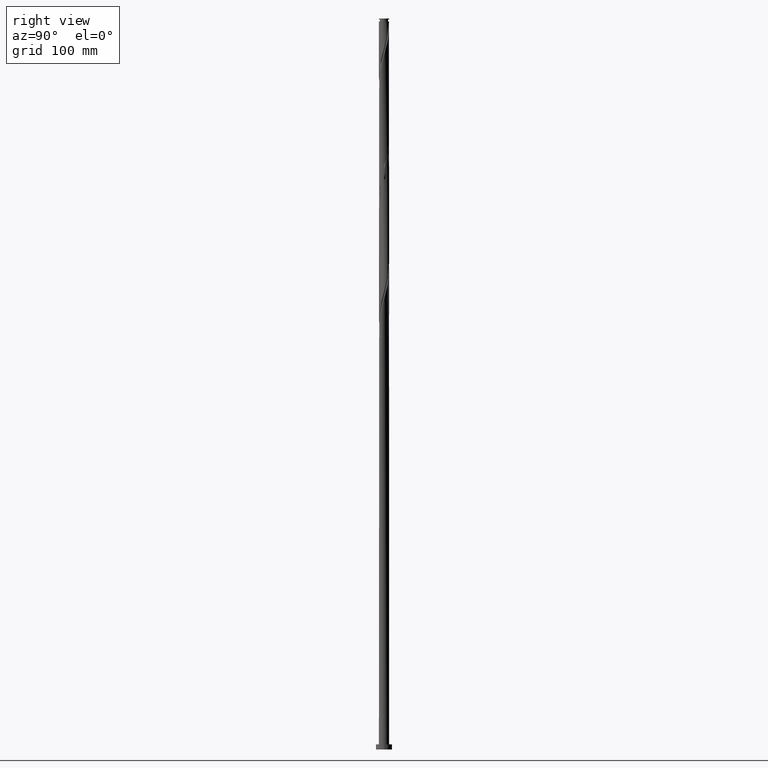
[diagram: clean part render]
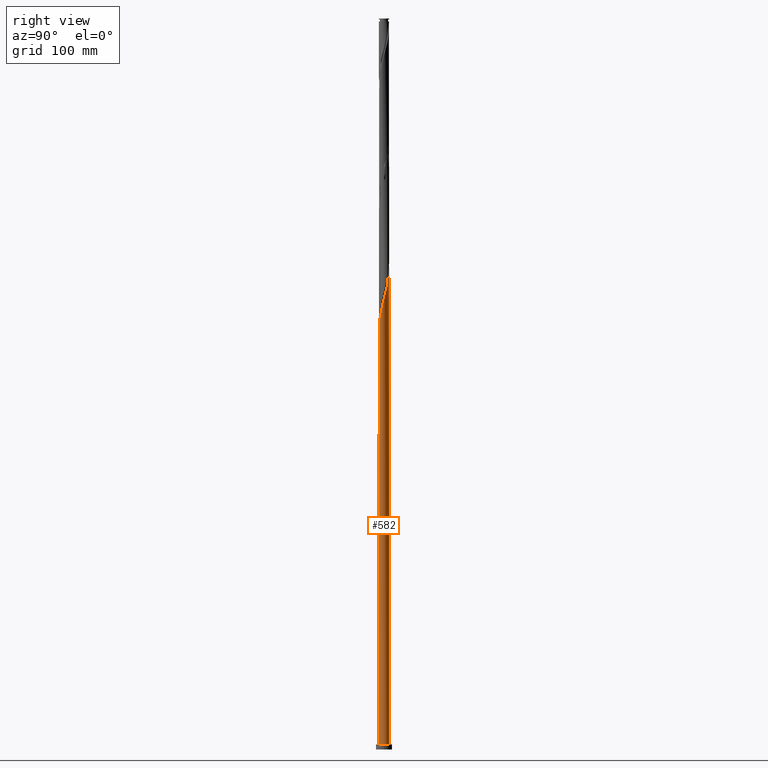
[diagram: same view with one face highlighted and labeled with its STEP entity id]
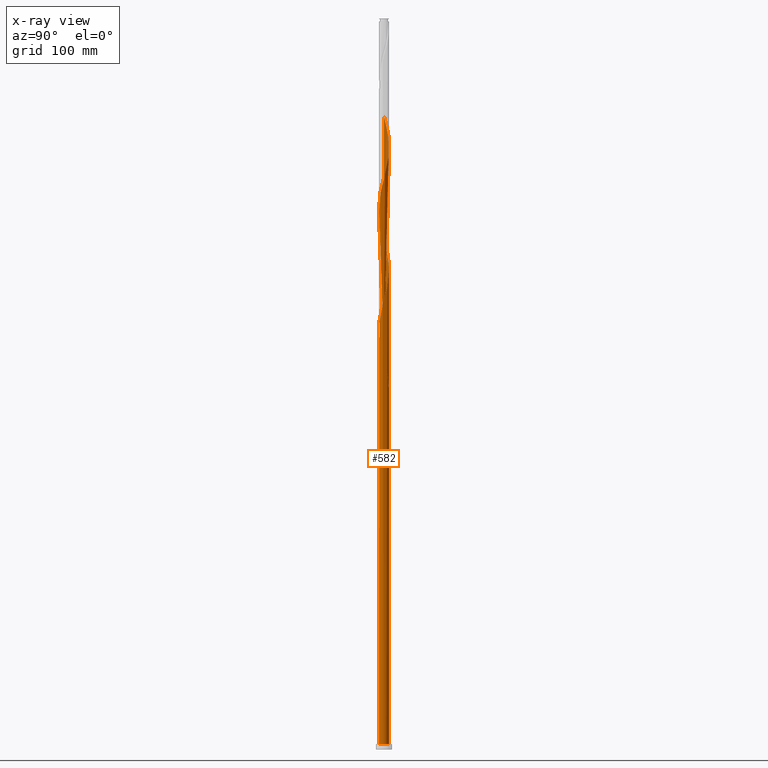
[diagram: x-ray of the same camera — body ghosted, the highlighted face saturated]
A machine part, right view. The second image highlights one B-rep face of the part: STEP entity #582.
The next image is the same camera in x-ray: the body ghosted, the highlighted face saturated — about 0% of this face is hidden behind the body in this view.
In plain terms, the highlighted cylindrical surface (bore or boss wall) has radius 7 mm, axis along (-0, -0, -1).
Its self-contained STEP definition (entity closure, byte-faithful):
#8 = CARTESIAN_POINT ( 'NONE',  ( 6.744705537261459938, -1.873218411086838620, 775.0884555702351690 ) ) ;
#13 = ORIENTED_EDGE ( 'NONE', *, *, #803, .T. ) ;
#18 = CARTESIAN_POINT ( 'NONE',  ( -3.865765209376792022, -5.835739828502648940, 725.0884555702352827 ) ) ;
#30 = CARTESIAN_POINT ( 'NONE',  ( -0.2477045896115740997, -7.017274856415686379, 739.6717889035687676 ) ) ;
#47 = CARTESIAN_POINT ( 'NONE',  ( -6.368631099858728994, 2.905260386593999211, 520.9217889035686540 ) ) ;
#48 = CARTESIAN_POINT ( 'NONE',  ( -5.159153274858739202, 4.731082062965558777, 845.9217889035684266 ) ) ;
#68 = CARTESIAN_POINT ( 'NONE',  ( -6.744705537261459938, 1.873218411086837509, 525.0884555702352827 ) ) ;
#70 = CARTESIAN_POINT ( 'NONE',  ( -6.139982148663833961, 3.406482524289229818, 852.1717889035687676 ) ) ;
#82 = CARTESIAN_POINT ( 'NONE',  ( -3.924253449303488406, 5.822691717739152395, 839.6717889035689950 ) ) ;
#114 = CARTESIAN_POINT ( 'NONE',  ( -1.932876120766163330, 6.750369906602927017, 664.6717889035687676 ) ) ;
#116 = ORIENTED_EDGE ( 'NONE', *, *, #2266, .T. ) ;
#129 = CARTESIAN_POINT ( 'NONE',  ( 3.924253449303488406, -5.822691717739153283, 589.6717889035689950 ) ) ;
#138 = CARTESIAN_POINT ( 'NONE',  ( 6.969630093397093162, 0.8530887031323927117, 618.8384555702353964 ) ) ;
#145 = CARTESIAN_POINT ( 'NONE',  ( -6.999999999999998224, -8.478051187993811111E-15, 542.9017337756833967 ) ) ;
#148 = CARTESIAN_POINT ( 'NONE',  ( 4.325047894464358222, 5.531497508341468361, 639.6717889035689950 ) ) ;
#154 = CARTESIAN_POINT ( 'NONE',  ( -3.406482524289221381, 6.139982148663823303, 514.6717889035686540 ) ) ;
#162 = CARTESIAN_POINT ( 'NONE',  ( 6.139982148663832184, -3.406482524289232927, 602.1717889035686540 ) ) ;
#168 = CARTESIAN_POINT ( 'NONE',  ( -5.822691717739143513, 3.924253449303482189, 527.1717889035687676 ) ) ;
#177 = CARTESIAN_POINT ( 'NONE',  ( -4.731082062965558777, -5.159153274858739202, 720.9217889035686540 ) ) ;
#190 = CARTESIAN_POINT ( 'NONE',  ( 1.932876120766162442, -6.750369906602927017, 748.0051222369021389 ) ) ;
#201 = CARTESIAN_POINT ( 'NONE',  ( 6.860000000000005649, 1.392982411949278410, 787.5884555702355101 ) ) ;
#214 = CARTESIAN_POINT ( 'NONE',  ( -5.159153274858739202, 4.731082062965558777, 679.2551222369020252 ) ) ;
#233 = CARTESIAN_POINT ( 'NONE',  ( -6.368631099858728994, 2.905260386593999211, 854.2551222369019115 ) ) ;
#242 = CARTESIAN_POINT ( 'NONE',  ( -2.448972917112381964, 6.557631558058916177, 833.4217889035683129 ) ) ;
#260 = CARTESIAN_POINT ( 'NONE',  ( -4.786809041376016260, 5.137116231466766436, 843.8384555702355101 ) ) ;
#289 = CARTESIAN_POINT ( 'NONE',  ( -0.7950515814432398409, -6.954702939942491113, 570.9217889035686540 ) ) ;
#297 =( BOUNDED_CURVE ( )  B_SPLINE_CURVE ( 2, ( #791, #1151, #438, #1161, #328, #876, #2306, #1912, #504, #2120, #656, #2085, #669, #1033, #1969, #1204, #478, #1265, #1250, #1587, #289, #1753, #1060, #839, #1046, #1767, #679, #341, #1419, #129, #1577, #1609, #853, #1565, #1792, #162, #1432, #518, #1954, #863, #315, #2268, #1233, #138, #702, #691, #2107, #1939, #1598, #2281, #492, #1781, #2294, #148, #1405, #1444, #530, #2134, #2096, #1072, #2253, #1391, #1219, #1019, #1741, #114, #1926, #304, #928, #2329, #2004, #1659, #214, #377, #577, #553, #1467, #1493, #2157, #939, #1620, #1120, #566, #1634, #725, #1837, #394, #1292, #1993, #2191, #1504, #1671, #177, #713, #18, #2027, #365, #1098, #751, #1814, #540, #30, #2181, #406, #1455, #190, #1109, #762, #918, #1482, #1315, #2144, #1304, #2170, #1644, #1826, #2017, #588, #8, #905, #1327, #1130, #1846, #892, #201, #2319, #1278, #1980, #352, #1085, #1804, #739, #416, #1885, #1139, #1678, #988, #1713, #1855, #640, #2071, #1377, #2200, #770, #2238, #2229, #242, #1516, #949, #82, #1335, #260, #48, #1687, #1366, #70, #233, #1553, #781, #788, #616, #459, #1185 ),
 .UNSPECIFIED., .F., .T. ) 
 B_SPLINE_CURVE_WITH_KNOTS ( ( 3, 2, 2, 2, 2, 2, 2, 2, 2, 2, 2, 2, 2, 2, 2, 2, 2, 2, 2, 2, 2, 2, 2, 2, 2, 2, 2, 2, 2, 2, 2, 2, 2, 2, 2, 2, 2, 2, 2, 2, 2, 2, 2, 2, 2, 2, 2, 2, 2, 2, 2, 2, 2, 2, 2, 2, 2, 2, 2, 2, 2, 2, 2, 2, 2, 2, 2, 2, 2, 2, 2, 2, 2, 2, 2, 2, 2, 2, 2, 2, 2, 3 ),
 ( 0.05452835374107316974, 0.05625000000000002220, 0.06250000000000000000, 0.06874999999999997780, 0.07499999999999995559, 0.08125000000000004441, 0.08750000000000002220, 0.09375000000000000000, 0.09999999999999997780, 0.1062499999999999556, 0.1125000000000000444, 0.1187500000000000222, 0.1250000000000000000, 0.1312499999999999778, 0.1374999999999999556, 0.1437500000000000444, 0.1500000000000000222, 0.1562500000000000000, 0.1624999999999999778, 0.1687499999999999556, 0.1750000000000000444, 0.1812500000000000222, 0.1875000000000000000, 0.1937499999999999778, 0.1999999999999999556, 0.2062500000000000444, 0.2125000000000000222, 0.2187500000000000000, 0.2249999999999999778, 0.2312499999999999556, 0.2375000000000000444, 0.2437500000000000222, 0.2500000000000000000, 0.2562499999999999778, 0.2624999999999999556, 0.2687500000000000444, 0.2750000000000000222, 0.2812500000000000000, 0.2874999999999999778, 0.2937499999999999556, 0.3000000000000000444, 0.3062500000000000222, 0.3125000000000000000, 0.3187499999999999778, 0.3249999999999999556, 0.3312500000000000444, 0.3375000000000000222, 0.3437500000000000000, 0.3499999999999999778, 0.3562499999999999556, 0.3625000000000000444, 0.3687500000000000222, 0.3750000000000000000, 0.3812499999999999778, 0.3874999999999999556, 0.3937500000000000444, 0.4000000000000000222, 0.4062500000000000000, 0.4124999999999999778, 0.4187499999999999556, 0.4250000000000000444, 0.4312500000000000222, 0.4375000000000000000, 0.4437499999999999778, 0.4499999999999999556, 0.4562500000000000444, 0.4625000000000000222, 0.4687500000000000000, 0.4749999999999999778, 0.4812499999999999556, 0.4875000000000000444, 0.4937500000000000222, 0.5000000000000000000, 0.5062499999999999778, 0.5124999999999999556, 0.5187500000000000444, 0.5250000000000000222, 0.5312500000000000000, 0.5374999999999999778, 0.5437499999999999556, 0.5500000000000000444, 0.5545283537410736763 ),
 .UNSPECIFIED. ) 
 CURVE ( )  GEOMETRIC_REPRESENTATION_ITEM ( )  RATIONAL_B_SPLINE_CURVE ( ( 0.9079722749903210710, 0.9083189438770313817, 0.9090909090909777834, 0.9062884852120027812, 0.9090909090909777834, 0.9062884852120027812, 0.9090909090909777834, 0.9062884852120027812, 0.9090909090909777834, 0.9062884852120027812, 0.9090909090909777834, 0.9062884852120027812, 0.9090909090909777834, 0.9062884852120027812, 0.9090909090909777834, 0.9062884852120027812, 0.9090909090909777834, 0.9062884852120027812, 0.9090909090909777834, 0.9062884852120027812, 0.9090909090909777834, 0.9062884852120027812, 0.9090909090909777834, 0.9062884852120027812, 0.9090909090909777834, 0.9062884852120027812, 0.9090909090909777834, 0.9062884852120027812, 0.9090909090909777834, 0.9062884852120027812, 0.9090909090909777834, 0.9062884852120027812, 0.9090909090909777834, 0.9062884852120027812, 0.9090909090909777834, 0.9062884852120027812, 0.9090909090909777834, 0.9062884852120027812, 0.9090909090909777834, 0.9062884852120027812, 0.9090909090909777834, 0.9062884852120027812, 0.9090909090909777834, 0.9062884852120027812, 0.9090909090909777834, 0.9062884852120027812, 0.9090909090909777834, 0.9062884852120027812, 0.9090909090909777834, 0.9062884852120027812, 0.9090909090909777834, 0.9062884852120027812, 0.9090909090909777834, 0.9062884852120027812, 0.9090909090909777834, 0.9062884852120027812, 0.9090909090909777834, 0.9062884852120027812, 0.9090909090909777834, 0.9062884852120027812, 0.9090909090909777834, 0.9062884852120027812, 0.9090909090909777834, 0.9062884852120027812, 0.9090909090909777834, 0.9062884852120027812, 0.9090909090909777834, 0.9062884852120027812, 0.9090909090909777834, 0.9062884852120027812, 0.9090909090909777834, 0.9062884852120027812, 0.9090909090909777834, 0.9062884852120027812, 0.9090909090909777834, 0.9062884852120027812, 0.9090909090909777834, 0.9062884852120027812, 0.9090909090909777834, 0.9062884852120027812, 0.9090909090909777834, 0.9062884852120027812, 0.9090909090909777834, 0.9062884852120027812, 0.9090909090909777834, 0.9062884852120027812, 0.9090909090909777834, 0.9062884852120027812, 0.9090909090909777834, 0.9062884852120027812, 0.9090909090909777834, 0.9062884852120027812, 0.9090909090909777834, 0.9062884852120027812, 0.9090909090909777834, 0.9062884852120027812, 0.9090909090909777834, 0.9062884852120027812, 0.9090909090909777834, 0.9062884852120027812, 0.9090909090909777834, 0.9062884852120027812, 0.9090909090909777834, 0.9062884852120027812, 0.9090909090909777834, 0.9062884852120027812, 0.9090909090909777834, 0.9062884852120027812, 0.9090909090909777834, 0.9062884852120027812, 0.9090909090909777834, 0.9062884852120027812, 0.9090909090909777834, 0.9062884852120027812, 0.9090909090909777834, 0.9062884852120027812, 0.9090909090909777834, 0.9062884852120027812, 0.9090909090909777834, 0.9062884852120027812, 0.9090909090909777834, 0.9062884852120027812, 0.9090909090909777834, 0.9062884852120027812, 0.9090909090909777834, 0.9062884852120027812, 0.9090909090909777834, 0.9062884852120027812, 0.9090909090909777834, 0.9062884852120027812, 0.9090909090909777834, 0.9062884852120027812, 0.9090909090909777834, 0.9062884852120027812, 0.9090909090909777834, 0.9062884852120027812, 0.9090909090909777834, 0.9062884852120027812, 0.9090909090909777834, 0.9062884852120027812, 0.9090909090909777834, 0.9062884852120027812, 0.9090909090909777834, 0.9062884852120027812, 0.9090909090909777834, 0.9062884852120027812, 0.9090909090909777834, 0.9062884852120027812, 0.9090909090909777834, 0.9062884852120027812, 0.9090909090909777834, 0.9062884852120027812, 0.9090909090909777834, 0.9062884852120027812, 0.9090909090909777834, 0.9062884852120027812, 0.9090909090909777834, 0.9062884852120027812, 0.9090909090909777834, 0.9062884852120027812, 0.9090909090909777834, 0.9070604504259488499, 0.9079722749903211820 ) ) 
 REPRESENTATION_ITEM ( '' )  );
#304 = CARTESIAN_POINT ( 'NONE',  ( -2.965069713458600376, 6.364893209514908001, 668.8384555702355101 ) ) ;
#313 = CARTESIAN_POINT ( 'NONE',  ( -1.392982411949277965, 6.860000000000005649, 495.9217889035687676 ) ) ;
#315 = CARTESIAN_POINT ( 'NONE',  ( 6.954702939942491113, -0.7950515814432398409, 612.5884555702353964 ) ) ;
#320 = CARTESIAN_POINT ( 'NONE',  ( -6.093792463627018208, 3.444661581381039728, 529.2551222369020252 ) ) ;
#321 = VERTEX_POINT ( 'NONE', #701 ) ;
#328 = CARTESIAN_POINT ( 'NONE',  ( -6.860000000000005649, -1.392982411949279076, 537.5884555702353964 ) ) ;
#333 = CARTESIAN_POINT ( 'NONE',  ( -5.137116231466754002, 4.786809041376009155, 523.0051222369021389 ) ) ;
#341 = CARTESIAN_POINT ( 'NONE',  ( 2.965069713458599931, -6.364893209514909778, 585.5051222369023662 ) ) ;
#352 = CARTESIAN_POINT ( 'NONE',  ( 6.093792463627028866, 3.444661581381042392, 795.9217889035686540 ) ) ;
#356 = CARTESIAN_POINT ( 'NONE',  ( -4.325047894464350229, 5.531497508341459479, 518.8384555702353964 ) ) ;
#357 =( BOUNDED_CURVE ( )  B_SPLINE_CURVE ( 2, ( #1528, #440, #430, #975, #1364, #1685, #1148, #1845, #760, #1862, #444, #1677, #47, #779, #68, #1503, #1344, #796, #1138 ),
 .UNSPECIFIED., .F., .T. ) 
 B_SPLINE_CURVE_WITH_KNOTS ( ( 3, 2, 2, 2, 2, 2, 2, 2, 2, 3 ),
 ( 0.000000000000000000, 0.006249999999999977796, 0.01249999999999995559, 0.01875000000000004441, 0.02500000000000002220, 0.03125000000000000000, 0.03749999999999997780, 0.04374999999999995559, 0.05000000000000004441, 0.05452835374107316280 ),
 .UNSPECIFIED. ) 
 CURVE ( )  GEOMETRIC_REPRESENTATION_ITEM ( )  RATIONAL_B_SPLINE_CURVE ( ( 0.9090909090909777834, 0.9062884852120027812, 0.9090909090909777834, 0.9062884852120027812, 0.9090909090909777834, 0.9062884852120027812, 0.9090909090909777834, 0.9062884852120027812, 0.9090909090909777834, 0.9062884852120027812, 0.9090909090909777834, 0.9062884852120027812, 0.9090909090909777834, 0.9062884852120027812, 0.9090909090909777834, 0.9062884852120027812, 0.9090909090909777834, 0.9070604504259491829, 0.9079722749903210710 ) ) 
 REPRESENTATION_ITEM ( '' )  );
#365 = CARTESIAN_POINT ( 'NONE',  ( -2.905260386593999211, -6.368631099858727218, 729.2551222369019115 ) ) ;
#374 = ORIENTED_EDGE ( 'NONE', *, *, #1498, .F. ) ;
#377 = CARTESIAN_POINT ( 'NONE',  ( -5.531497508341468361, 4.325047894464359111, 681.3384555702355101 ) ) ;
#394 = CARTESIAN_POINT ( 'NONE',  ( -6.557631558058916177, -2.448972917112380632, 708.4217889035685403 ) ) ;
#406 = CARTESIAN_POINT ( 'NONE',  ( 0.8530887031323957093, -6.969630093397091386, 743.8384555702355101 ) ) ;
#416 = CARTESIAN_POINT ( 'NONE',  ( 4.731082062965561441, 5.159153274858739202, 804.2551222369021389 ) ) ;
#419 = CIRCLE ( 'NONE', #542, 7.000000000000000888 ) ;
#428 = CARTESIAN_POINT ( 'NONE',  ( 1.392982411949280408, 6.859999999999995879, 495.9217889035687676 ) ) ;
#430 = CARTESIAN_POINT ( 'NONE',  ( -2.448972917112381964, 6.557631558058916177, 500.0884555702352827 ) ) ;
#438 = CARTESIAN_POINT ( 'NONE',  ( -6.993452474906387550, -0.3026920567604113876, 533.4217889035688813 ) ) ;
#440 = CARTESIAN_POINT ( 'NONE',  ( -1.932876120766163330, 6.750369906602927017, 498.0051222369021389 ) ) ;
#444 = CARTESIAN_POINT ( 'NONE',  ( -5.835739828502649829, 3.865765209376791578, 516.7551222369019115 ) ) ;
#454 = CARTESIAN_POINT ( 'NONE',  ( -6.859999999999996767, 1.392982411949279298, 537.5884555702355101 ) ) ;
#459 = CARTESIAN_POINT ( 'NONE',  ( -7.000000000000012434, 0.3988161621250020383, 864.0966221797758635 ) ) ;
#460 = EDGE_CURVE ( 'NONE', #2224, #2335, #357, .T. ) ;
#463 = CARTESIAN_POINT ( 'NONE',  ( -7.000000000000000888, 0.000000000000000000, 1000.000000000000000 ) ) ;
#478 = CARTESIAN_POINT ( 'NONE',  ( -2.905260386593999211, -6.368631099858727218, 562.5884555702355101 ) ) ;
#481 = EDGE_CURVE ( 'NONE', #2335, #1320, #786, .T. ) ;
#484 = ORIENTED_EDGE ( 'NONE', *, *, #481, .T. ) ;
#492 = CARTESIAN_POINT ( 'NONE',  ( 5.479903974602956751, 4.355531245339750335, 633.4217889035684266 ) ) ;
#504 = CARTESIAN_POINT ( 'NONE',  ( -6.093792463627028866, -3.444661581381043280, 545.9217889035686540 ) ) ;
#518 = CARTESIAN_POINT ( 'NONE',  ( 6.597280051053631134, -2.404038248898769048, 606.3384555702352827 ) ) ;
#530 = CARTESIAN_POINT ( 'NONE',  ( 2.905260386593999655, 6.368631099858727218, 645.9217889035687676 ) ) ;
#540 = CARTESIAN_POINT ( 'NONE',  ( -0.7950515814432398409, -6.954702939942491113, 737.5884555702353964 ) ) ;
#542 = AXIS2_PLACEMENT_3D ( 'NONE', #1388, #872, #2303 ) ;
#545 = CARTESIAN_POINT ( 'NONE',  ( -0.7950515814432368433, 6.954702939942481343, 504.2551222369020252 ) ) ;
#553 = CARTESIAN_POINT ( 'NONE',  ( -6.139982148663833961, 3.406482524289229818, 685.5051222369022526 ) ) ;
#566 = CARTESIAN_POINT ( 'NONE',  ( -6.993452474906387550, -0.3026920567604113876, 700.0884555702352827 ) ) ;
#577 = CARTESIAN_POINT ( 'NONE',  ( -5.835739828502649829, 3.865765209376791578, 683.4217889035687676 ) ) ;
#582 = ADVANCED_FACE ( 'NONE', ( #1158 ), #1873, .T. ) ;
#588 = CARTESIAN_POINT ( 'NONE',  ( 6.597280051053631134, -2.404038248898769048, 773.0051222369023662 ) ) ;
#616 = CARTESIAN_POINT ( 'NONE',  ( -6.954702939942491113, 0.7950515814432395079, 862.5884555702352827 ) ) ;
#618 = CIRCLE ( 'NONE', #959, 7.000000000000000888 ) ;
#630 = DIRECTION ( 'NONE',  ( -0.000000000000000000, -0.000000000000000000, -1.000000000000000000 ) ) ;
#635 = CARTESIAN_POINT ( 'NONE',  ( -6.999999999999998224, 0.1514168430644566299, 542.3277214656170599 ) ) ;
#640 = CARTESIAN_POINT ( 'NONE',  ( 1.342398573274909968, 6.892131023469296736, 818.8384555702353964 ) ) ;
#656 = CARTESIAN_POINT ( 'NONE',  ( -5.479903974602956751, -4.355531245339752111, 550.0884555702352827 ) ) ;
#669 = CARTESIAN_POINT ( 'NONE',  ( -4.731082062965558777, -5.159153274858739202, 554.2551222369019115 ) ) ;
#679 = CARTESIAN_POINT ( 'NONE',  ( 2.448972917112380188, -6.557631558058916177, 583.4217889035686540 ) ) ;
#691 = CARTESIAN_POINT ( 'NONE',  ( 6.750369906602927017, 1.932876120766165107, 623.0051222369021389 ) ) ;
#701 = CARTESIAN_POINT ( 'NONE',  ( -7.000000000000009770, -1.895620600132406079E-15, 865.6085106981207673 ) ) ;
#702 = CARTESIAN_POINT ( 'NONE',  ( 6.860000000000005649, 1.392982411949278410, 620.9217889035686540 ) ) ;
#706 = CARTESIAN_POINT ( 'NONE',  ( -7.000000000000000888, 0.000000000000000000, 7.000000000000000000 ) ) ;
#713 = CARTESIAN_POINT ( 'NONE',  ( -4.325047894464359111, -5.531497508341468361, 723.0051222369022526 ) ) ;
#718 = CARTESIAN_POINT ( 'NONE',  ( -0.2477045896115717127, 7.017274856415675721, 502.1717889035687108 ) ) ;
#725 = CARTESIAN_POINT ( 'NONE',  ( -6.860000000000005649, -1.392982411949279076, 704.2551222369017978 ) ) ;
#727 = DIRECTION ( 'NONE',  ( 1.000000000000000000, 0.000000000000000000, 0.000000000000000000 ) ) ;
#739 = CARTESIAN_POINT ( 'NONE',  ( 5.137116231466767324, 4.786809041376013596, 802.1717889035691087 ) ) ;
#751 = CARTESIAN_POINT ( 'NONE',  ( -1.873218411086838175, -6.744705537261459938, 733.4217889035686540 ) ) ;
#760 = CARTESIAN_POINT ( 'NONE',  ( -5.159153274858739202, 4.731082062965558777, 512.5884555702352827 ) ) ;
#762 = CARTESIAN_POINT ( 'NONE',  ( 2.965069713458599931, -6.364893209514909778, 752.1717889035689950 ) ) ;
#769 = CARTESIAN_POINT ( 'NONE',  ( 0.000000000000000000, 0.000000000000000000, 1000.000000000000000 ) ) ;
#770 = CARTESIAN_POINT ( 'NONE',  ( -0.8530887031323921565, 6.969630093397093162, 827.1717889035688813 ) ) ;
#779 = CARTESIAN_POINT ( 'NONE',  ( -6.597280051053631134, 2.404038248898770824, 523.0051222369022526 ) ) ;
#781 = CARTESIAN_POINT ( 'NONE',  ( -6.744705537261459938, 1.873218411086837509, 858.4217889035686540 ) ) ;
#786 = LINE ( 'NONE', #1354, #1758 ) ;
#788 = CARTESIAN_POINT ( 'NONE',  ( -6.892131023469298512, 1.342398573274906415, 860.5051222369024799 ) ) ;
#791 = CARTESIAN_POINT ( 'NONE',  ( -7.000000000000008882, -8.940761728183550974E-15, 532.2751773647875098 ) ) ;
#796 = CARTESIAN_POINT ( 'NONE',  ( -7.000000000000006217, 0.3988161621250465583, 530.7632888464422649 ) ) ;
#803 = EDGE_CURVE ( 'NONE', #2109, #1320, #889, .T. ) ;
#804 = DIRECTION ( 'NONE',  ( 1.000000000000000000, 0.000000000000000000, 0.000000000000000000 ) ) ;
#816 = EDGE_LOOP ( 'NONE', ( #374, #1298, #484, #1631, #13, #2098, #1393, #116, #2213 ) ) ;
#829 = CARTESIAN_POINT ( 'NONE',  ( 0.000000000000000000, 0.000000000000000000, 7.000000000000000000 ) ) ;
#839 = CARTESIAN_POINT ( 'NONE',  ( 0.8530887031323957093, -6.969630093397091386, 577.1717889035687676 ) ) ;
#853 = CARTESIAN_POINT ( 'NONE',  ( 5.159153274858739202, -4.731082062965558777, 595.9217889035687676 ) ) ;
#863 = CARTESIAN_POINT ( 'NONE',  ( 6.892131023469296736, -1.342398573274909523, 610.5051222369021389 ) ) ;
#865 = DIRECTION ( 'NONE',  ( 0.000000000000000000, 0.000000000000000000, 1.000000000000000000 ) ) ;
#872 = DIRECTION ( 'NONE',  ( 0.000000000000000000, -1.982541115402065386E-14, -1.000000000000000000 ) ) ;
#876 = CARTESIAN_POINT ( 'NONE',  ( -6.750369906602927017, -1.932876120766162664, 539.6717889035686540 ) ) ;
#889 = CIRCLE ( 'NONE', #1036, 7.000000000000000888 ) ;
#892 = CARTESIAN_POINT ( 'NONE',  ( 6.969630093397093162, 0.8530887031323927117, 785.5051222369022526 ) ) ;
#905 = CARTESIAN_POINT ( 'NONE',  ( 6.892131023469296736, -1.342398573274909523, 777.1717889035688813 ) ) ;
#909 = CARTESIAN_POINT ( 'NONE',  ( -6.364893209514898231, 2.965069713458597267, 531.3384555702353964 ) ) ;
#918 = CARTESIAN_POINT ( 'NONE',  ( 3.444661581381042836, -6.093792463627028866, 754.2551222369020252 ) ) ;
#923 = CARTESIAN_POINT ( 'NONE',  ( 0.3026920567604124424, 6.993452474906375116, 500.0884555702353964 ) ) ;
#928 = CARTESIAN_POINT ( 'NONE',  ( -3.444661581381043725, 6.093792463627027978, 670.9217889035686540 ) ) ;
#939 = CARTESIAN_POINT ( 'NONE',  ( -6.892131023469298512, 1.342398573274906415, 693.8384555702355101 ) ) ;
#948 = DIRECTION ( 'NONE',  ( -0.000000000000000000, -0.000000000000000000, -1.000000000000000000 ) ) ;
#949 = CARTESIAN_POINT ( 'NONE',  ( -3.444661581381043725, 6.093792463627027978, 837.5884555702355101 ) ) ;
#959 = AXIS2_PLACEMENT_3D ( 'NONE', #829, #2089, #804 ) ;
#975 = CARTESIAN_POINT ( 'NONE',  ( -2.965069713458600376, 6.364893209514908001, 502.1717889035688245 ) ) ;
#988 = CARTESIAN_POINT ( 'NONE',  ( 2.905260386593999655, 6.368631099858727218, 812.5884555702351690 ) ) ;
#1019 = CARTESIAN_POINT ( 'NONE',  ( -0.8530887031323921565, 6.969630093397093162, 660.5051222369021389 ) ) ;
#1025 = CARTESIAN_POINT ( 'NONE',  ( -6.993452474906375116, 0.3026920567604128309, 541.7551222369020252 ) ) ;
#1033 = CARTESIAN_POINT ( 'NONE',  ( -4.325047894464359111, -5.531497508341468361, 556.3384555702355101 ) ) ;
#1036 = AXIS2_PLACEMENT_3D ( 'NONE', #1624, #865, #727 ) ;
#1046 = CARTESIAN_POINT ( 'NONE',  ( 1.392982411949278632, -6.860000000000005649, 579.2551222369021389 ) ) ;
#1060 = CARTESIAN_POINT ( 'NONE',  ( 0.3026920567604109435, -6.993452474906386662, 575.0884555702351690 ) ) ;
#1072 = CARTESIAN_POINT ( 'NONE',  ( 1.342398573274909968, 6.892131023469296736, 652.1717889035688813 ) ) ;
#1078 = CARTESIAN_POINT ( 'NONE',  ( -5.479903974602946981, 4.355531245339743229, 525.0884555702352827 ) ) ;
#1085 = CARTESIAN_POINT ( 'NONE',  ( 5.822691717739151507, 3.924253449303488850, 798.0051222369022526 ) ) ;
#1089 = CARTESIAN_POINT ( 'NONE',  ( -3.865765209376786249, 5.835739828502640947, 516.7551222369020252 ) ) ;
#1095 =( BOUNDED_CURVE ( )  B_SPLINE_CURVE ( 2, ( #1165, #635, #1025, #2068, #454, #1179, #1892, #909, #320, #168, #1078, #333, #1459, #356, #1089, #154, #2126, #1818, #2148, #1625, #545, #718, #923, #2333, #1473 ),
 .UNSPECIFIED., .F., .T. ) 
 B_SPLINE_CURVE_WITH_KNOTS ( ( 3, 2, 2, 2, 2, 2, 2, 2, 2, 2, 2, 2, 3 ),
 ( 0.9295283537410733432, 0.9312500000000000222, 0.9375000000000000000, 0.9437499999999999778, 0.9499999999999999556, 0.9562500000000000444, 0.9625000000000000222, 0.9687500000000000000, 0.9749999999999999778, 0.9812499999999999556, 0.9875000000000000444, 0.9937500000000000222, 1.000000000000000000 ),
 .UNSPECIFIED. ) 
 CURVE ( )  GEOMETRIC_REPRESENTATION_ITEM ( )  RATIONAL_B_SPLINE_CURVE ( ( 0.9079722749903147427, 0.9083189438770251645, 0.9090909090909714552, 0.9062884852119965640, 0.9090909090909714552, 0.9062884852119965640, 0.9090909090909714552, 0.9062884852119965640, 0.9090909090909714552, 0.9062884852119965640, 0.9090909090909714552, 0.9062884852119965640, 0.9090909090909714552, 0.9062884852119965640, 0.9090909090909714552, 0.9062884852119965640, 0.9090909090909714552, 0.9062884852119965640, 0.9090909090909714552, 0.9062884852119965640, 0.9090909090909714552, 0.9062884852119965640, 0.9090909090909714552, 0.9062884852119965640, 0.9090909090909714552 ) ) 
 REPRESENTATION_ITEM ( '' )  );
#1098 = CARTESIAN_POINT ( 'NONE',  ( -2.404038248898770824, -6.597280051053631134, 731.3384555702355101 ) ) ;
#1109 = CARTESIAN_POINT ( 'NONE',  ( 2.448972917112380188, -6.557631558058916177, 750.0884555702352827 ) ) ;
#1120 = CARTESIAN_POINT ( 'NONE',  ( -7.017274856415686379, 0.2477045896115736556, 698.0051222369023662 ) ) ;
#1130 = CARTESIAN_POINT ( 'NONE',  ( 7.017274856415688156, -0.2477045896115713242, 781.3384555702355101 ) ) ;
#1138 = CARTESIAN_POINT ( 'NONE',  ( -7.000000000000008882, -8.940761728183550974E-15, 532.2751773647875098 ) ) ;
#1139 = CARTESIAN_POINT ( 'NONE',  ( 3.865765209376793354, 5.835739828502648940, 808.4217889035685403 ) ) ;
#1148 = CARTESIAN_POINT ( 'NONE',  ( -4.355531245339752111, 5.479903974602956751, 508.4217889035685971 ) ) ;
#1151 = CARTESIAN_POINT ( 'NONE',  ( -7.000000000000010658, -0.1514168430644396157, 532.8491896748538466 ) ) ;
#1158 = FACE_OUTER_BOUND ( 'NONE', #816, .T. ) ;
#1161 = CARTESIAN_POINT ( 'NONE',  ( -6.969630093397091386, -0.8530887031323962644, 535.5051222369021389 ) ) ;
#1165 = CARTESIAN_POINT ( 'NONE',  ( -6.999999999999998224, -8.478051187993811111E-15, 542.9017337756833967 ) ) ;
#1170 = EDGE_CURVE ( 'NONE', #1320, #2109, #618, .T. ) ;
#1179 = CARTESIAN_POINT ( 'NONE',  ( -6.750369906602915471, 1.932876120766161110, 535.5051222369021389 ) ) ;
#1185 = CARTESIAN_POINT ( 'NONE',  ( -7.000000000000010658, -1.895620600132406079E-15, 865.6085106981207673 ) ) ;
#1204 = CARTESIAN_POINT ( 'NONE',  ( -3.406482524289229818, -6.139982148663833961, 560.5051222369021389 ) ) ;
#1219 = CARTESIAN_POINT ( 'NONE',  ( -0.3026920567604101664, 6.993452474906387550, 658.4217889035685403 ) ) ;
#1233 = CARTESIAN_POINT ( 'NONE',  ( 6.993452474906387550, 0.3026920567604105550, 616.7551222369020252 ) ) ;
#1243 = EDGE_CURVE ( 'NONE', #2194, #1519, #1095, .T. ) ;
#1250 = CARTESIAN_POINT ( 'NONE',  ( -1.873218411086838175, -6.744705537261459938, 566.7551222369019115 ) ) ;
#1265 = CARTESIAN_POINT ( 'NONE',  ( -2.404038248898770824, -6.597280051053631134, 564.6717889035689950 ) ) ;
#1278 = CARTESIAN_POINT ( 'NONE',  ( 6.557631558058916177, 2.448972917112380188, 791.7551222369020252 ) ) ;
#1292 = CARTESIAN_POINT ( 'NONE',  ( -6.364893209514909778, -2.965069713458600376, 710.5051222369022526 ) ) ;
#1298 = ORIENTED_EDGE ( 'NONE', *, *, #1968, .F. ) ;
#1304 = CARTESIAN_POINT ( 'NONE',  ( 5.159153274858739202, -4.731082062965558777, 762.5884555702352827 ) ) ;
#1315 = CARTESIAN_POINT ( 'NONE',  ( 4.355531245339750335, -5.479903974602956751, 758.4217889035685403 ) ) ;
#1320 = VERTEX_POINT ( 'NONE', #706 ) ;
#1327 = CARTESIAN_POINT ( 'NONE',  ( 6.954702939942491113, -0.7950515814432398409, 779.2551222369019115 ) ) ;
#1335 = CARTESIAN_POINT ( 'NONE',  ( -4.355531245339752111, 5.479903974602956751, 841.7551222369017978 ) ) ;
#1344 = CARTESIAN_POINT ( 'NONE',  ( -6.954702939942491113, 0.7950515814432395079, 529.2551222369019115 ) ) ;
#1354 = CARTESIAN_POINT ( 'NONE',  ( -7.000000000000000888, 0.000000000000000000, 1000.000000000000000 ) ) ;
#1364 = CARTESIAN_POINT ( 'NONE',  ( -3.444661581381043725, 6.093792463627027978, 504.2551222369019683 ) ) ;
#1366 = CARTESIAN_POINT ( 'NONE',  ( -5.835739828502649829, 3.865765209376791578, 850.0884555702350553 ) ) ;
#1377 = CARTESIAN_POINT ( 'NONE',  ( 0.2477045896115715462, 7.017274856415688156, 823.0051222369021389 ) ) ;
#1388 = CARTESIAN_POINT ( 'NONE',  ( 0.000000000000000000, 0.000000000000000000, 495.9217889035688813 ) ) ;
#1391 = CARTESIAN_POINT ( 'NONE',  ( 0.2477045896115715462, 7.017274856415688156, 656.3384555702355101 ) ) ;
#1393 = ORIENTED_EDGE ( 'NONE', *, *, #460, .F. ) ;
#1405 = CARTESIAN_POINT ( 'NONE',  ( 3.865765209376793354, 5.835739828502648940, 641.7551222369017978 ) ) ;
#1419 = CARTESIAN_POINT ( 'NONE',  ( 3.444661581381042836, -6.093792463627028866, 587.5884555702352827 ) ) ;
#1432 = CARTESIAN_POINT ( 'NONE',  ( 6.368631099858727218, -2.905260386593999211, 604.2551222369020252 ) ) ;
#1438 = AXIS2_PLACEMENT_3D ( 'NONE', #769, #1515, #2199 ) ;
#1444 = CARTESIAN_POINT ( 'NONE',  ( 3.406482524289232927, 6.139982148663830408, 643.8384555702356238 ) ) ;
#1455 = CARTESIAN_POINT ( 'NONE',  ( 1.392982411949278632, -6.860000000000005649, 745.9217889035685403 ) ) ;
#1459 = CARTESIAN_POINT ( 'NONE',  ( -4.731082062965552559, 5.159153274858734761, 520.9217889035686540 ) ) ;
#1467 = CARTESIAN_POINT ( 'NONE',  ( -6.368631099858728994, 2.905260386593999211, 687.5884555702353964 ) ) ;
#1471 = VECTOR ( 'NONE', #630, 1000.000000000000000 ) ;
#1473 = CARTESIAN_POINT ( 'NONE',  ( 1.392982411949280408, 6.859999999999994991, 495.9217889035688245 ) ) ;
#1482 = CARTESIAN_POINT ( 'NONE',  ( 3.924253449303488406, -5.822691717739153283, 756.3384555702357375 ) ) ;
#1493 = CARTESIAN_POINT ( 'NONE',  ( -6.597280051053631134, 2.404038248898770824, 689.6717889035688813 ) ) ;
#1498 = EDGE_CURVE ( 'NONE', #321, #2194, #2231, .T. ) ;
#1503 = CARTESIAN_POINT ( 'NONE',  ( -6.892131023469298512, 1.342398573274906415, 527.1717889035688813 ) ) ;
#1504 = CARTESIAN_POINT ( 'NONE',  ( -5.479903974602956751, -4.355531245339752111, 716.7551222369019115 ) ) ;
#1515 = DIRECTION ( 'NONE',  ( -0.000000000000000000, -0.000000000000000000, -1.000000000000000000 ) ) ;
#1516 = CARTESIAN_POINT ( 'NONE',  ( -2.965069713458600376, 6.364893209514908001, 835.5051222369021389 ) ) ;
#1519 = VERTEX_POINT ( 'NONE', #428 ) ;
#1528 = CARTESIAN_POINT ( 'NONE',  ( -1.392982411949277965, 6.860000000000005649, 495.9217889035687676 ) ) ;
#1553 = CARTESIAN_POINT ( 'NONE',  ( -6.597280051053631134, 2.404038248898770824, 856.3384555702357375 ) ) ;
#1565 = CARTESIAN_POINT ( 'NONE',  ( 5.531497508341468361, -4.325047894464359999, 598.0051222369022526 ) ) ;
#1577 = CARTESIAN_POINT ( 'NONE',  ( 4.355531245339750335, -5.479903974602956751, 591.7551222369017978 ) ) ;
#1587 = CARTESIAN_POINT ( 'NONE',  ( -1.342398573274906637, -6.892131023469298512, 568.8384555702356238 ) ) ;
#1598 = CARTESIAN_POINT ( 'NONE',  ( 6.093792463627028866, 3.444661581381042392, 629.2551222369020252 ) ) ;
#1609 = CARTESIAN_POINT ( 'NONE',  ( 4.786809041376016260, -5.137116231466766436, 593.8384555702355101 ) ) ;
#1620 = CARTESIAN_POINT ( 'NONE',  ( -6.954702939942491113, 0.7950515814432395079, 695.9217889035684266 ) ) ;
#1624 = CARTESIAN_POINT ( 'NONE',  ( 0.000000000000000000, 0.000000000000000000, 7.000000000000000000 ) ) ;
#1625 = CARTESIAN_POINT ( 'NONE',  ( -1.342398573274901974, 6.892131023469287854, 506.3384555702355101 ) ) ;
#1631 = ORIENTED_EDGE ( 'NONE', *, *, #1170, .T. ) ;
#1634 = CARTESIAN_POINT ( 'NONE',  ( -6.969630093397091386, -0.8530887031323962644, 702.1717889035691087 ) ) ;
#1644 = CARTESIAN_POINT ( 'NONE',  ( 5.835739828502648940, -3.865765209376792022, 766.7551222369021389 ) ) ;
#1659 = CARTESIAN_POINT ( 'NONE',  ( -4.786809041376016260, 5.137116231466766436, 677.1717889035688813 ) ) ;
#1671 = CARTESIAN_POINT ( 'NONE',  ( -5.137116231466766436, -4.786809041376016260, 718.8384555702358512 ) ) ;
#1677 = CARTESIAN_POINT ( 'NONE',  ( -6.139982148663833961, 3.406482524289229818, 518.8384555702355101 ) ) ;
#1678 = CARTESIAN_POINT ( 'NONE',  ( 3.406482524289232927, 6.139982148663830408, 810.5051222369023662 ) ) ;
#1685 = CARTESIAN_POINT ( 'NONE',  ( -3.924253449303488406, 5.822691717739152395, 506.3384555702356806 ) ) ;
#1687 = CARTESIAN_POINT ( 'NONE',  ( -5.531497508341468361, 4.325047894464359111, 848.0051222369022526 ) ) ;
#1713 = CARTESIAN_POINT ( 'NONE',  ( 2.404038248898769936, 6.597280051053631134, 814.6717889035688813 ) ) ;
#1741 = CARTESIAN_POINT ( 'NONE',  ( -1.392982411949277965, 6.860000000000005649, 662.5884555702356238 ) ) ;
#1753 = CARTESIAN_POINT ( 'NONE',  ( -0.2477045896115740997, -7.017274856415686379, 573.0051222369023662 ) ) ;
#1758 = VECTOR ( 'NONE', #948, 1000.000000000000000 ) ;
#1767 = CARTESIAN_POINT ( 'NONE',  ( 1.932876120766162442, -6.750369906602927017, 581.3384555702357375 ) ) ;
#1781 = CARTESIAN_POINT ( 'NONE',  ( 5.137116231466767324, 4.786809041376013596, 635.5051222369023662 ) ) ;
#1792 = CARTESIAN_POINT ( 'NONE',  ( 5.835739828502648940, -3.865765209376792022, 600.0884555702352827 ) ) ;
#1804 = CARTESIAN_POINT ( 'NONE',  ( 5.479903974602956751, 4.355531245339750335, 800.0884555702350553 ) ) ;
#1814 = CARTESIAN_POINT ( 'NONE',  ( -1.342398573274906637, -6.892131023469298512, 735.5051222369021389 ) ) ;
#1818 = CARTESIAN_POINT ( 'NONE',  ( -2.404038248898764163, 6.597280051053622252, 510.5051222369021389 ) ) ;
#1826 = CARTESIAN_POINT ( 'NONE',  ( 6.139982148663832184, -3.406482524289232927, 768.8384555702356238 ) ) ;
#1837 = CARTESIAN_POINT ( 'NONE',  ( -6.750369906602927017, -1.932876120766162664, 706.3384555702356238 ) ) ;
#1845 = CARTESIAN_POINT ( 'NONE',  ( -4.786809041376016260, 5.137116231466766436, 510.5051222369021389 ) ) ;
#1846 = CARTESIAN_POINT ( 'NONE',  ( 6.993452474906387550, 0.3026920567604105550, 783.4217889035686540 ) ) ;
#1855 = CARTESIAN_POINT ( 'NONE',  ( 1.873218411086838842, 6.744705537261459938, 816.7551222369016841 ) ) ;
#1862 = CARTESIAN_POINT ( 'NONE',  ( -5.531497508341468361, 4.325047894464359111, 514.6717889035687676 ) ) ;
#1864 = CARTESIAN_POINT ( 'NONE',  ( 7.000000000000000888, 0.000000000000000000, 7.000000000000000000 ) ) ;
#1873 = CYLINDRICAL_SURFACE ( 'NONE', #1438, 7.000000000000000888 ) ;
#1885 = CARTESIAN_POINT ( 'NONE',  ( 4.325047894464358222, 5.531497508341468361, 806.3384555702355101 ) ) ;
#1892 = CARTESIAN_POINT ( 'NONE',  ( -6.557631558058905519, 2.448972917112378855, 533.4217889035688813 ) ) ;
#1910 = CARTESIAN_POINT ( 'NONE',  ( -7.000000000000008882, -8.940761728183550974E-15, 532.2751773647875098 ) ) ;
#1912 = CARTESIAN_POINT ( 'NONE',  ( -6.364893209514909778, -2.965069713458600376, 543.8384555702355101 ) ) ;
#1926 = CARTESIAN_POINT ( 'NONE',  ( -2.448972917112381964, 6.557631558058916177, 666.7551222369020252 ) ) ;
#1939 = CARTESIAN_POINT ( 'NONE',  ( 6.364893209514913330, 2.965069713458597267, 627.1717889035689950 ) ) ;
#1954 = CARTESIAN_POINT ( 'NONE',  ( 6.744705537261459938, -1.873218411086838620, 608.4217889035686540 ) ) ;
#1968 = EDGE_CURVE ( 'NONE', #2335, #321, #297, .T. ) ;
#1969 = CARTESIAN_POINT ( 'NONE',  ( -3.865765209376792022, -5.835739828502648940, 558.4217889035685403 ) ) ;
#1980 = CARTESIAN_POINT ( 'NONE',  ( 6.364893209514913330, 2.965069713458597267, 793.8384555702357375 ) ) ;
#1993 = CARTESIAN_POINT ( 'NONE',  ( -6.093792463627028866, -3.444661581381043280, 712.5884555702351690 ) ) ;
#2004 = CARTESIAN_POINT ( 'NONE',  ( -4.355531245339752111, 5.479903974602956751, 675.0884555702352827 ) ) ;
#2017 = CARTESIAN_POINT ( 'NONE',  ( 6.368631099858727218, -2.905260386593999211, 770.9217889035688813 ) ) ;
#2027 = CARTESIAN_POINT ( 'NONE',  ( -3.406482524289229818, -6.139982148663833961, 727.1717889035688813 ) ) ;
#2068 = CARTESIAN_POINT ( 'NONE',  ( -6.969630093397078063, 0.8530887031323968195, 539.6717889035686540 ) ) ;
#2071 = CARTESIAN_POINT ( 'NONE',  ( 0.7950515814432407291, 6.954702939942491113, 820.9217889035685403 ) ) ;
#2085 = CARTESIAN_POINT ( 'NONE',  ( -5.137116231466766436, -4.786809041376016260, 552.1717889035689950 ) ) ;
#2089 = DIRECTION ( 'NONE',  ( 0.000000000000000000, 0.000000000000000000, 1.000000000000000000 ) ) ;
#2096 = CARTESIAN_POINT ( 'NONE',  ( 1.873218411086838842, 6.744705537261459938, 650.0884555702351690 ) ) ;
#2098 = ORIENTED_EDGE ( 'NONE', *, *, #481, .F. ) ;
#2107 = CARTESIAN_POINT ( 'NONE',  ( 6.557631558058916177, 2.448972917112380188, 625.0884555702350553 ) ) ;
#2109 = VERTEX_POINT ( 'NONE', #1864 ) ;
#2120 = CARTESIAN_POINT ( 'NONE',  ( -5.822691717739152395, -3.924253449303488406, 548.0051222369021389 ) ) ;
#2126 = CARTESIAN_POINT ( 'NONE',  ( -2.905260386593993438, 6.368631099858721001, 512.5884555702353964 ) ) ;
#2134 = CARTESIAN_POINT ( 'NONE',  ( 2.404038248898769936, 6.597280051053631134, 648.0051222369023662 ) ) ;
#2144 = CARTESIAN_POINT ( 'NONE',  ( 4.786809041376016260, -5.137116231466766436, 760.5051222369022526 ) ) ;
#2148 = CARTESIAN_POINT ( 'NONE',  ( -1.873218411086832624, 6.744705537261451944, 508.4217889035687108 ) ) ;
#2157 = CARTESIAN_POINT ( 'NONE',  ( -6.744705537261459938, 1.873218411086837509, 691.7551222369019115 ) ) ;
#2170 = CARTESIAN_POINT ( 'NONE',  ( 5.531497508341468361, -4.325047894464359999, 764.6717889035689950 ) ) ;
#2181 = CARTESIAN_POINT ( 'NONE',  ( 0.3026920567604109435, -6.993452474906386662, 741.7551222369019115 ) ) ;
#2191 = CARTESIAN_POINT ( 'NONE',  ( -5.822691717739152395, -3.924253449303488406, 714.6717889035687676 ) ) ;
#2194 = VERTEX_POINT ( 'NONE', #145 ) ;
#2199 = DIRECTION ( 'NONE',  ( -1.000000000000000000, 0.000000000000000000, 0.000000000000000000 ) ) ;
#2200 = CARTESIAN_POINT ( 'NONE',  ( -0.3026920567604101664, 6.993452474906387550, 825.0884555702351690 ) ) ;
#2213 = ORIENTED_EDGE ( 'NONE', *, *, #1243, .F. ) ;
#2224 = VERTEX_POINT ( 'NONE', #313 ) ;
#2229 = CARTESIAN_POINT ( 'NONE',  ( -1.932876120766163330, 6.750369906602927017, 831.3384555702356238 ) ) ;
#2231 = LINE ( 'NONE', #463, #1471 ) ;
#2238 = CARTESIAN_POINT ( 'NONE',  ( -1.392982411949277965, 6.860000000000005649, 829.2551222369020252 ) ) ;
#2253 = CARTESIAN_POINT ( 'NONE',  ( 0.7950515814432407291, 6.954702939942491113, 654.2551222369020252 ) ) ;
#2266 = EDGE_CURVE ( 'NONE', #2224, #1519, #419, .T. ) ;
#2268 = CARTESIAN_POINT ( 'NONE',  ( 7.017274856415688156, -0.2477045896115713242, 614.6717889035689950 ) ) ;
#2281 = CARTESIAN_POINT ( 'NONE',  ( 5.822691717739151507, 3.924253449303488850, 631.3384555702357375 ) ) ;
#2294 = CARTESIAN_POINT ( 'NONE',  ( 4.731082062965561441, 5.159153274858739202, 637.5884555702353964 ) ) ;
#2303 = DIRECTION ( 'NONE',  ( 0.000000000000000000, 1.000000000000000000, -2.379049338482477895E-14 ) ) ;
#2306 = CARTESIAN_POINT ( 'NONE',  ( -6.557631558058916177, -2.448972917112380632, 541.7551222369021389 ) ) ;
#2319 = CARTESIAN_POINT ( 'NONE',  ( 6.750369906602927017, 1.932876120766165107, 789.6717889035687676 ) ) ;
#2329 = CARTESIAN_POINT ( 'NONE',  ( -3.924253449303488406, 5.822691717739152395, 673.0051222369022526 ) ) ;
#2333 = CARTESIAN_POINT ( 'NONE',  ( 0.8530887031323962644, 6.969630093397078063, 498.0051222369020252 ) ) ;
#2335 = VERTEX_POINT ( 'NONE', #1910 ) ;